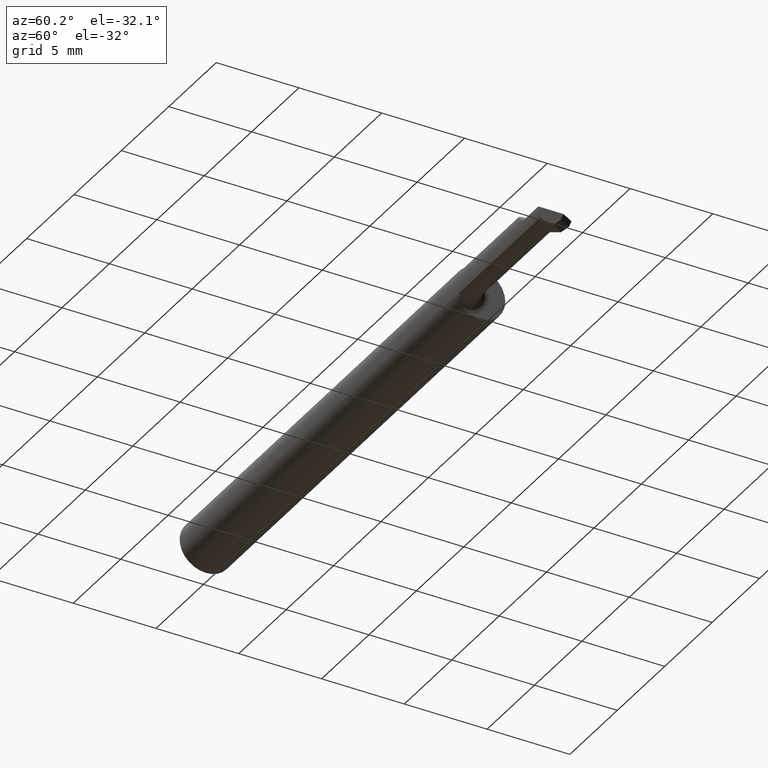
[diagram: clean part render]
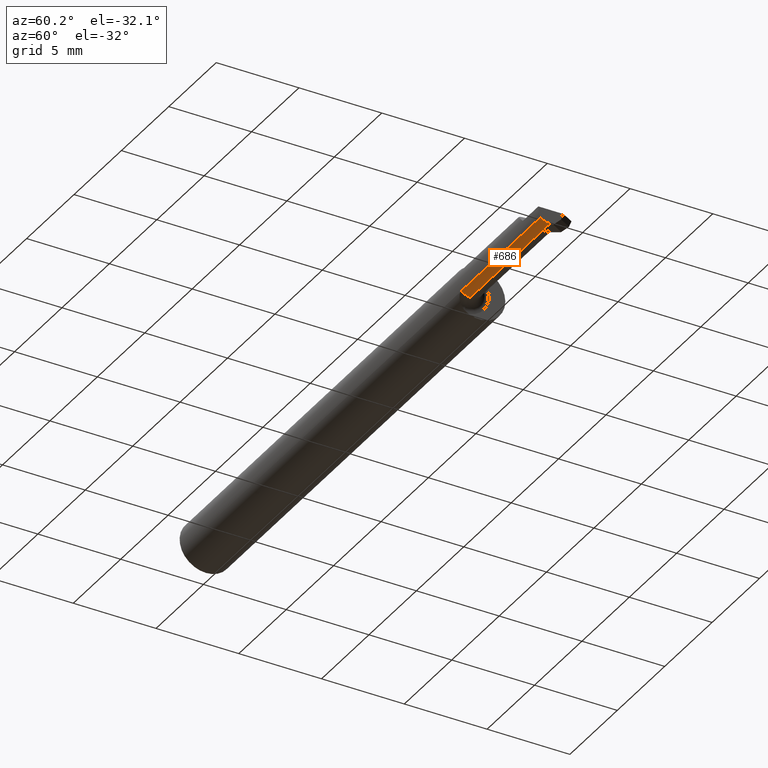
[diagram: same view with one face highlighted and labeled with its STEP entity id]
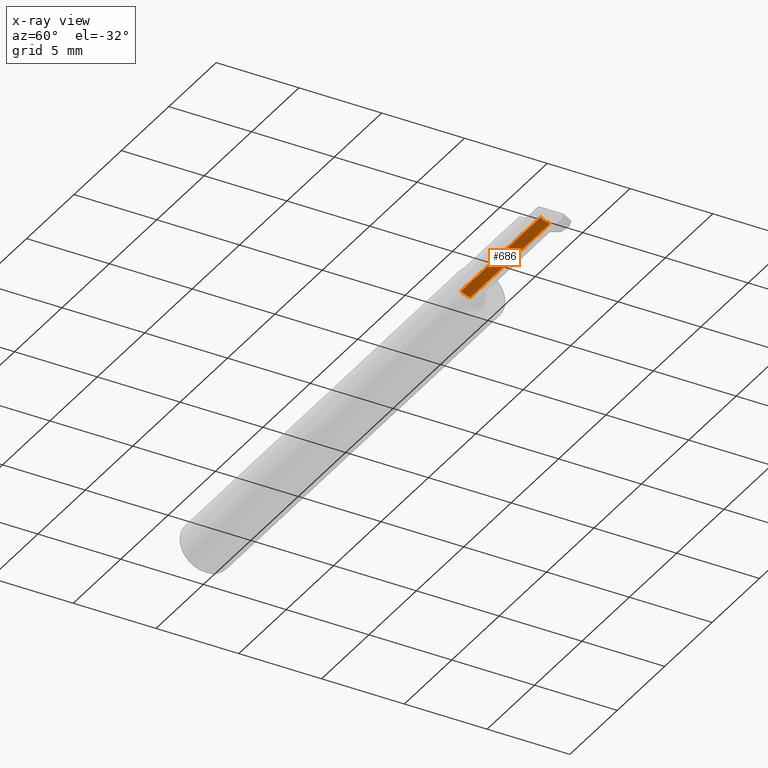
[diagram: x-ray of the same camera — body ghosted, the highlighted face saturated]
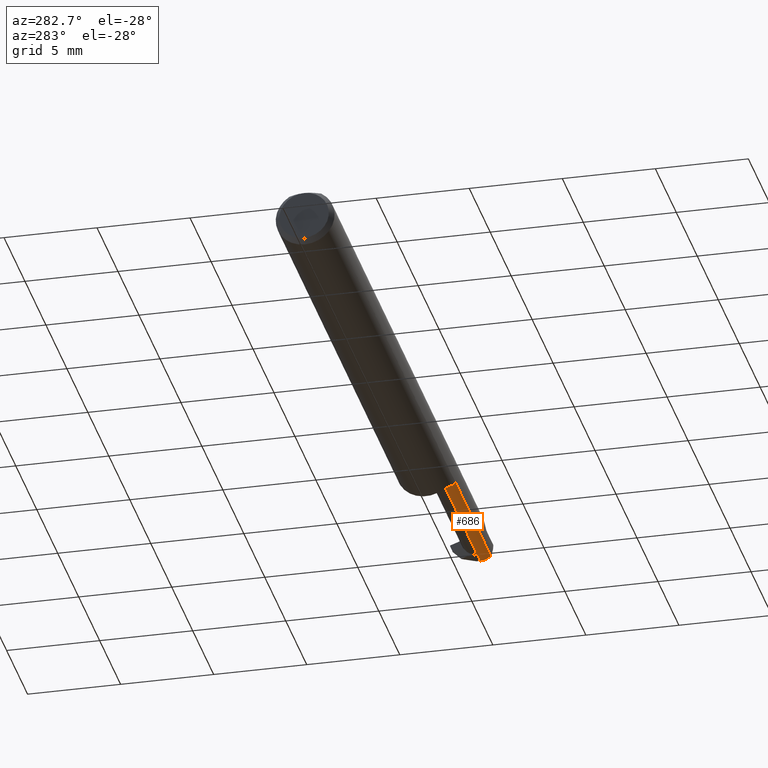
[diagram: same view with one face highlighted and labeled with its STEP entity id]
A machine part, auxiliary view. The second image highlights one B-rep face of the part: STEP entity #686.
The next image is the same camera in x-ray: the body ghosted, the highlighted face saturated — about 0% of this face is hidden behind the body in this view.
A second angle (auxiliary view) of the same face is appended — the face is thin or edge-on in the first view.
In plain terms, the highlighted cylindrical surface (edge-blend (fillet) strip) has radius 0.8509 mm, axis along (-1, -0, -0).
Its self-contained STEP definition (entity closure, byte-faithful):
#10 = CARTESIAN_POINT ( 'NONE',  ( 1.170000000000000151, -0.03485000000000003373, -0.03349999999999998812 ) ) ;
#12 = VERTEX_POINT ( 'NONE', #130 ) ;
#16 = CIRCLE ( 'NONE', #289, 0.03350000000000004363 ) ;
#35 = DIRECTION ( 'NONE',  ( -1.000000000000000000, -0.000000000000000000, -0.000000000000000000 ) ) ;
#40 = CYLINDRICAL_SURFACE ( 'NONE', #745, 0.03350000000000000894 ) ;
#63 = ORIENTED_EDGE ( 'NONE', *, *, #819, .F. ) ;
#130 = CARTESIAN_POINT ( 'NONE',  ( 1.170000000000000151, -0.05709892395982783808, -0.02504466774844097895 ) ) ;
#182 = VERTEX_POINT ( 'NONE', #433 ) ;
#191 = ORIENTED_EDGE ( 'NONE', *, *, #760, .F. ) ;
#195 = VECTOR ( 'NONE', #781, 39.37007874015748143 ) ;
#201 = DIRECTION ( 'NONE',  ( 0.000000000000000000, 0.000000000000000000, 1.000000000000000000 ) ) ;
#215 = DIRECTION ( 'NONE',  ( 0.000000000000000000, 0.000000000000000000, 1.000000000000000000 ) ) ;
#248 = VERTEX_POINT ( 'NONE', #879 ) ;
#253 = LINE ( 'NONE', #263, #785 ) ;
#263 = CARTESIAN_POINT ( 'NONE',  ( 1.665661542731879941, -0.03485000000000006842, -0.03350000000000006445 ) ) ;
#273 = VECTOR ( 'NONE', #859, 39.37007874015748143 ) ;
#289 = AXIS2_PLACEMENT_3D ( 'NONE', #696, #625, #215 ) ;
#311 = LINE ( 'NONE', #581, #273 ) ;
#315 = DIRECTION ( 'NONE',  ( 0.000000000000000000, 0.000000000000000000, 1.000000000000000000 ) ) ;
#393 = DIRECTION ( 'NONE',  ( -1.000000000000000000, -0.000000000000000000, -0.000000000000000000 ) ) ;
#433 = CARTESIAN_POINT ( 'NONE',  ( 1.500000000000000222, -0.05709892395982777563, -0.02504466774844104834 ) ) ;
#462 = ORIENTED_EDGE ( 'NONE', *, *, #552, .F. ) ;
#472 = AXIS2_PLACEMENT_3D ( 'NONE', #546, #478, #201 ) ;
#478 = DIRECTION ( 'NONE',  ( -1.000000000000000000, -0.000000000000000000, -0.000000000000000000 ) ) ;
#506 = LINE ( 'NONE', #776, #195 ) ;
#523 = VERTEX_POINT ( 'NONE', #10 ) ;
#546 = CARTESIAN_POINT ( 'NONE',  ( 1.170000000000000151, -0.03485000000000003373, 0.000000000000000000 ) ) ;
#552 = EDGE_CURVE ( 'NONE', #182, #248, #16, .T. ) ;
#560 = EDGE_CURVE ( 'NONE', #642, #523, #506, .T. ) ;
#581 = CARTESIAN_POINT ( 'NONE',  ( 1.317830771365940068, -0.05709892395982781726, -0.02504466774844102059 ) ) ;
#610 = ORIENTED_EDGE ( 'NONE', *, *, #694, .T. ) ;
#625 = DIRECTION ( 'NONE',  ( 1.000000000000000000, 0.000000000000000000, 0.000000000000000000 ) ) ;
#642 = VERTEX_POINT ( 'NONE', #874 ) ;
#658 = FACE_OUTER_BOUND ( 'NONE', #888, .T. ) ;
#686 = ADVANCED_FACE ( 'NONE', ( #658 ), #40, .T. ) ;
#694 = EDGE_CURVE ( 'NONE', #182, #12, #311, .T. ) ;
#696 = CARTESIAN_POINT ( 'NONE',  ( 1.500000000000000222, -0.03485000000000003373, 0.000000000000000000 ) ) ;
#745 = AXIS2_PLACEMENT_3D ( 'NONE', #807, #35, #315 ) ;
#760 = EDGE_CURVE ( 'NONE', #248, #642, #253, .T. ) ;
#776 = CARTESIAN_POINT ( 'NONE',  ( 1.145000000000000240, -0.03485000000000003373, -0.03350000000000000894 ) ) ;
#781 = DIRECTION ( 'NONE',  ( -1.000000000000000000, -0.000000000000000000, -0.000000000000000000 ) ) ;
#785 = VECTOR ( 'NONE', #393, 39.37007874015748143 ) ;
#806 = ORIENTED_EDGE ( 'NONE', *, *, #560, .F. ) ;
#807 = CARTESIAN_POINT ( 'NONE',  ( 1.145000000000000240, -0.03485000000000003373, 0.000000000000000000 ) ) ;
#819 = EDGE_CURVE ( 'NONE', #523, #12, #865, .T. ) ;
#859 = DIRECTION ( 'NONE',  ( -1.000000000000000000, -0.000000000000000000, -0.000000000000000000 ) ) ;
#865 = CIRCLE ( 'NONE', #472, 0.03349999999999998812 ) ;
#874 = CARTESIAN_POINT ( 'NONE',  ( 1.470988396680375176, -0.03485000000000003373, -0.03350000000000003669 ) ) ;
#879 = CARTESIAN_POINT ( 'NONE',  ( 1.500000000000000222, -0.03485000000000006842, -0.03350000000000006445 ) ) ;
#888 = EDGE_LOOP ( 'NONE', ( #806, #191, #462, #610, #63 ) ) ;